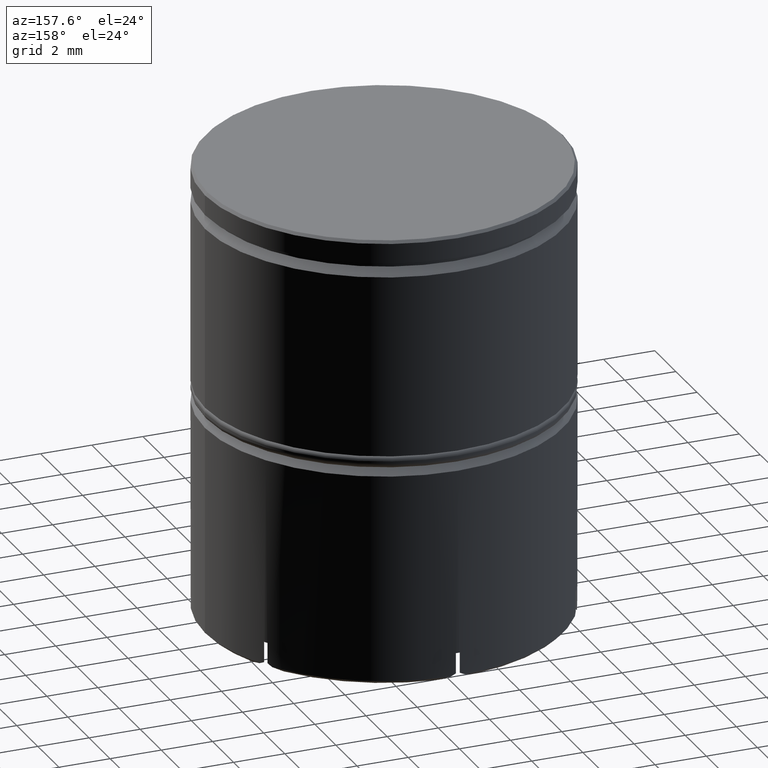
[diagram: clean part render]
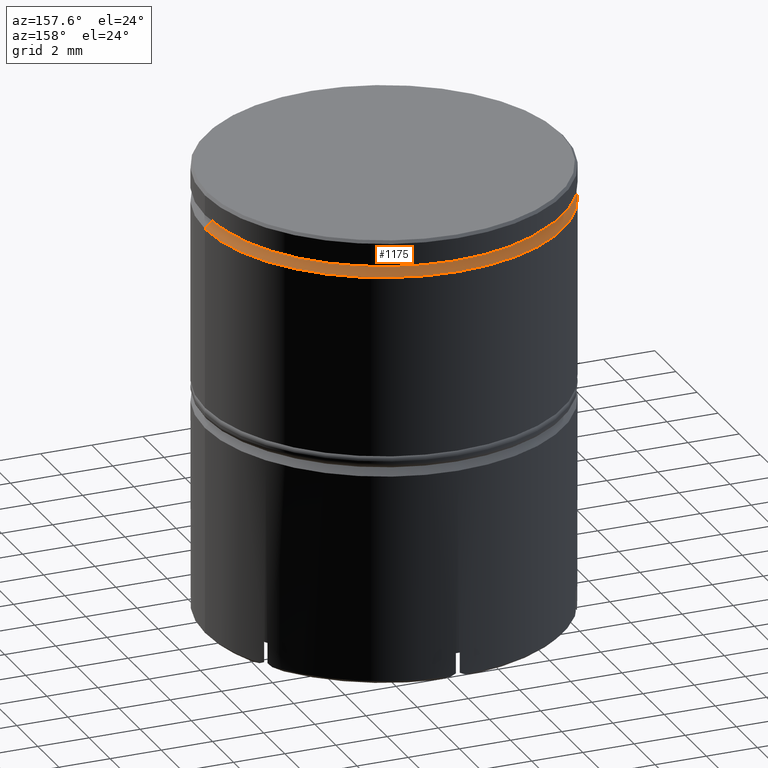
[diagram: same view with one face highlighted and labeled with its STEP entity id]
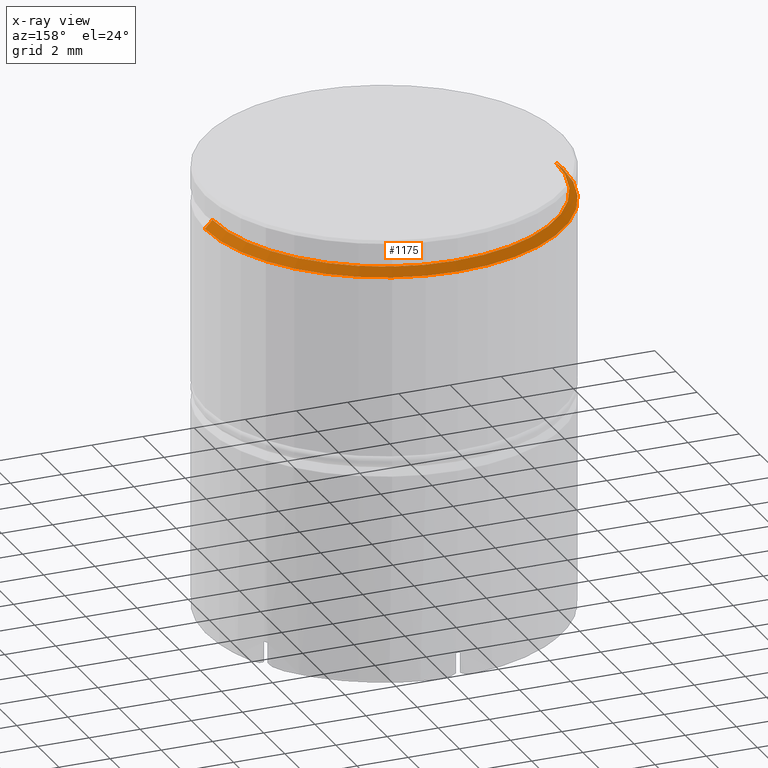
[diagram: x-ray of the same camera — body ghosted, the highlighted face saturated]
A machine part, auxiliary view. The second image highlights one B-rep face of the part: STEP entity #1175.
The next image is the same camera in x-ray: the body ghosted, the highlighted face saturated — about 1% of this face is hidden behind the body in this view.
In plain terms, the highlighted conical surface has half-angle 45 deg.
Its self-contained STEP definition (entity closure, byte-faithful):
#22 = AXIS2_PLACEMENT_3D ( 'NONE', #43, #1457, #1212 ) ;
#30 = VERTEX_POINT ( 'NONE', #579 ) ;
#43 = CARTESIAN_POINT ( 'NONE',  ( 0.000000000000000000, 0.000000000000000000, -1.125000000000000222 ) ) ;
#80 = ORIENTED_EDGE ( 'NONE', *, *, #676, .T. ) ;
#112 = DIRECTION ( 'NONE',  ( 0.000000000000000000, 0.000000000000000000, -1.000000000000000000 ) ) ;
#135 = VERTEX_POINT ( 'NONE', #637 ) ;
#147 = CARTESIAN_POINT ( 'NONE',  ( 6.699999999999997513, 8.205133554287261632E-16, -1.125000000000000222 ) ) ;
#173 = DIRECTION ( 'NONE',  ( -1.000000000000000000, 0.000000000000000000, 0.000000000000000000 ) ) ;
#198 = FACE_OUTER_BOUND ( 'NONE', #896, .T. ) ;
#215 = VECTOR ( 'NONE', #384, 1000.000000000000114 ) ;
#308 = CARTESIAN_POINT ( 'NONE',  ( -6.699999999999997513, 0.000000000000000000, -1.125000000000000222 ) ) ;
#309 = ORIENTED_EDGE ( 'NONE', *, *, #1548, .F. ) ;
#312 = CARTESIAN_POINT ( 'NONE',  ( -7.000000000000000888, 8.572527594031474176E-16, -1.425000000000005151 ) ) ;
#384 = DIRECTION ( 'NONE',  ( 0.7071067811865455743, 8.659560562354906974E-17, -0.7071067811865495711 ) ) ;
#460 = EDGE_CURVE ( 'NONE', #1558, #30, #834, .T. ) ;
#500 = ORIENTED_EDGE ( 'NONE', *, *, #460, .F. ) ;
#503 = DIRECTION ( 'NONE',  ( 1.000000000000000000, 0.000000000000000000, 0.000000000000000000 ) ) ;
#579 = CARTESIAN_POINT ( 'NONE',  ( 7.000000000000000888, 0.000000000000000000, -1.425000000000005151 ) ) ;
#635 = ORIENTED_EDGE ( 'NONE', *, *, #872, .F. ) ;
#637 = CARTESIAN_POINT ( 'NONE',  ( 6.700000000000001066, 0.000000000000000000, -1.125000000000000222 ) ) ;
#676 = EDGE_CURVE ( 'NONE', #135, #30, #784, .T. ) ;
#726 = AXIS2_PLACEMENT_3D ( 'NONE', #841, #1345, #173 ) ;
#741 = CARTESIAN_POINT ( 'NONE',  ( -6.700000000000001066, 8.205133554287267548E-16, -1.125000000000000222 ) ) ;
#784 = LINE ( 'NONE', #147, #215 ) ;
#816 = VECTOR ( 'NONE', #825, 1000.000000000000114 ) ;
#825 = DIRECTION ( 'NONE',  ( -0.7071067811865455743, 0.000000000000000000, -0.7071067811865495711 ) ) ;
#834 = CIRCLE ( 'NONE', #888, 7.000000000000000888 ) ;
#841 = CARTESIAN_POINT ( 'NONE',  ( 0.000000000000000000, 0.000000000000000000, -1.125000000000000222 ) ) ;
#872 = EDGE_CURVE ( 'NONE', #1178, #1558, #947, .T. ) ;
#888 = AXIS2_PLACEMENT_3D ( 'NONE', #1504, #112, #503 ) ;
#890 = CIRCLE ( 'NONE', #22, 6.700000000000001066 ) ;
#896 = EDGE_LOOP ( 'NONE', ( #309, #80, #500, #635 ) ) ;
#947 = LINE ( 'NONE', #308, #816 ) ;
#1175 = ADVANCED_FACE ( 'NONE', ( #198 ), #1361, .T. ) ;
#1178 = VERTEX_POINT ( 'NONE', #741 ) ;
#1212 = DIRECTION ( 'NONE',  ( 1.000000000000000000, 0.000000000000000000, 0.000000000000000000 ) ) ;
#1345 = DIRECTION ( 'NONE',  ( 0.000000000000000000, 0.000000000000000000, -1.000000000000000000 ) ) ;
#1361 = CONICAL_SURFACE ( 'NONE', #726, 6.699999999999997513, 0.7853981633974453924 ) ;
#1457 = DIRECTION ( 'NONE',  ( -0.000000000000000000, -0.000000000000000000, 1.000000000000000000 ) ) ;
#1504 = CARTESIAN_POINT ( 'NONE',  ( 0.000000000000000000, 0.000000000000000000, -1.425000000000005151 ) ) ;
#1548 = EDGE_CURVE ( 'NONE', #135, #1178, #890, .T. ) ;
#1558 = VERTEX_POINT ( 'NONE', #312 ) ;